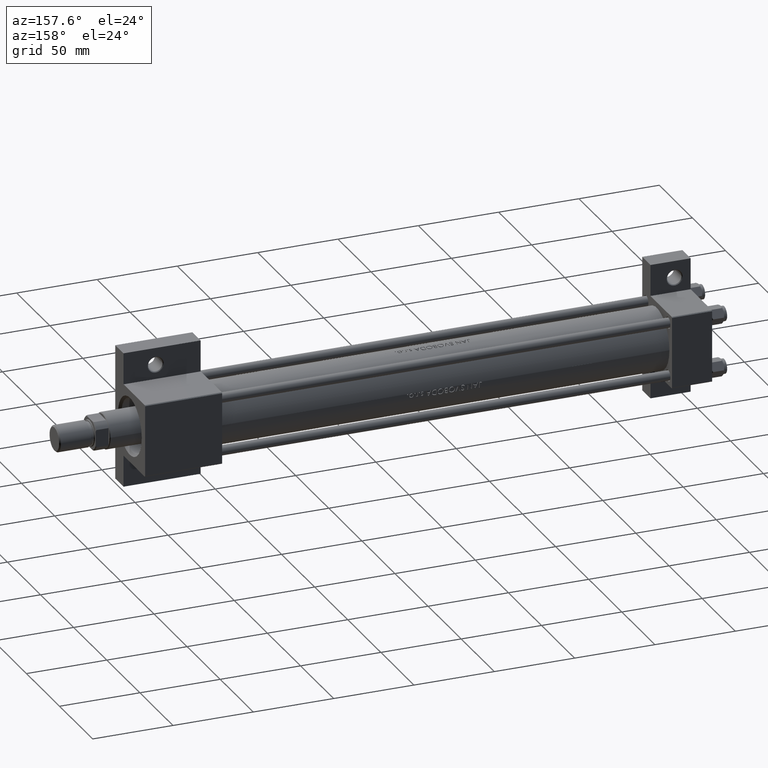
[diagram: clean part render]
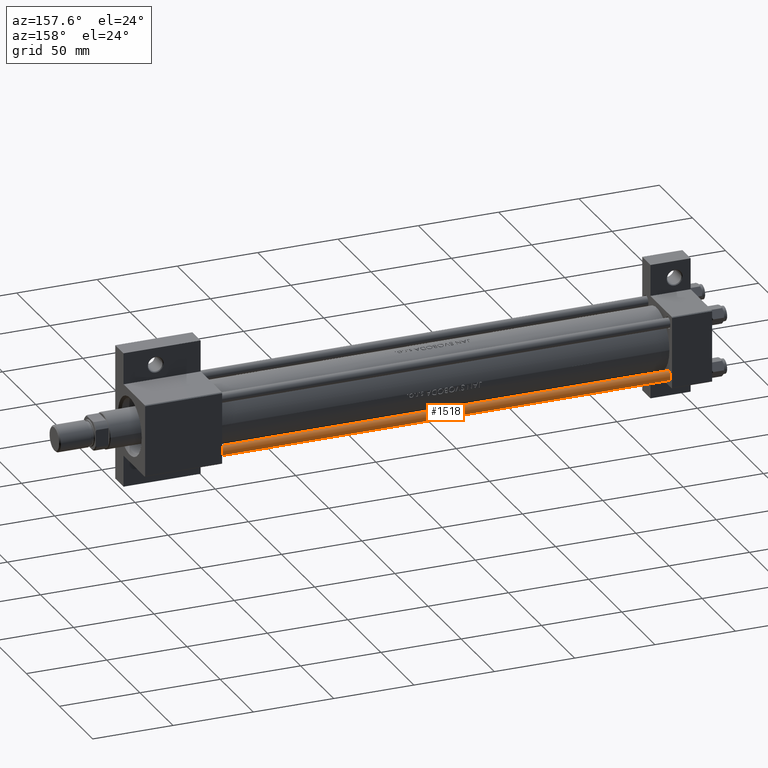
[diagram: same view with one face highlighted and labeled with its STEP entity id]
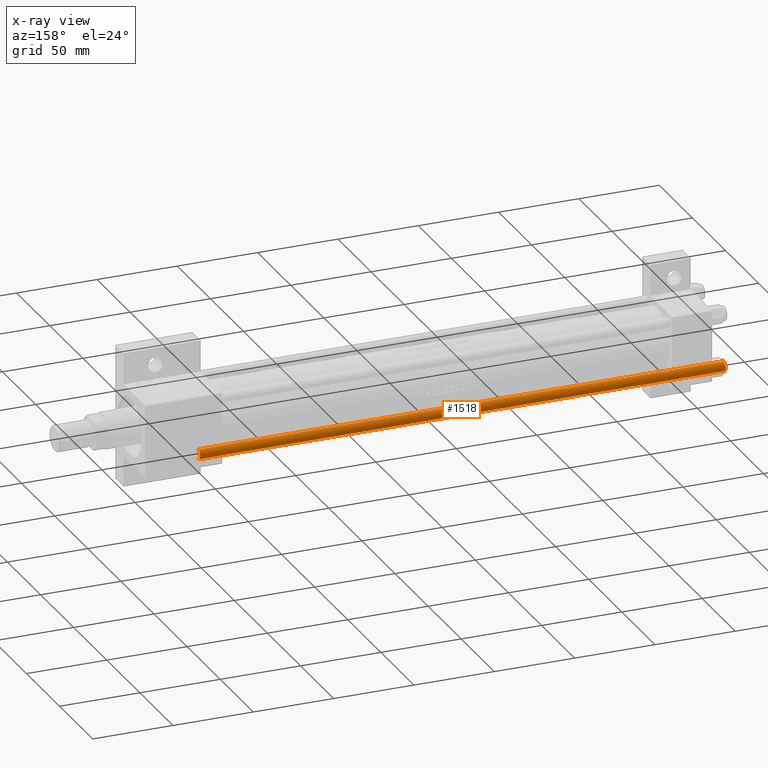
[diagram: x-ray of the same camera — body ghosted, the highlighted face saturated]
A machine part, auxiliary view. The second image highlights one B-rep face of the part: STEP entity #1518.
The next image is the same camera in x-ray: the body ghosted, the highlighted face saturated — about 0% of this face is hidden behind the body in this view.
In plain terms, the highlighted cylindrical surface (edge-blend (fillet) strip) has radius 3 mm, axis along (1, -0, -0).
Its self-contained STEP definition (entity closure, byte-faithful):
#762 = DIRECTION ( 'NONE',  ( 1.000000000000000000, 0.000000000000000000, 0.000000000000000000 ) ) ;
#904 = EDGE_CURVE ( 'NONE', #33443, #20782, #33482, .T. ) ;
#1518 = ADVANCED_FACE ( 'NONE', ( #13994 ), #3772, .T. ) ;
#2131 = CARTESIAN_POINT ( 'NONE',  ( -3.000000000000000444, 0.000000000000000000, 328.0000000000000000 ) ) ;
#2611 = LINE ( 'NONE', #2131, #13061 ) ;
#3772 = CYLINDRICAL_SURFACE ( 'NONE', #45916, 3.000000000000000444 ) ;
#4326 = CARTESIAN_POINT ( 'NONE',  ( 3.000000000000000444, 3.673940397442060361E-16, 328.0000000000000000 ) ) ;
#8411 = CIRCLE ( 'NONE', #45517, 3.000000000000000444 ) ;
#9964 = CARTESIAN_POINT ( 'NONE',  ( 3.000000000000000444, 3.673940397442060361E-16, 0.5000000000000559552 ) ) ;
#11070 = DIRECTION ( 'NONE',  ( -0.000000000000000000, -0.000000000000000000, -1.000000000000000000 ) ) ;
#12541 = AXIS2_PLACEMENT_3D ( 'NONE', #22164, #36992, #762 ) ;
#13061 = VECTOR ( 'NONE', #13793, 1000.000000000000000 ) ;
#13793 = DIRECTION ( 'NONE',  ( -0.000000000000000000, -0.000000000000000000, -1.000000000000000000 ) ) ;
#13994 = FACE_OUTER_BOUND ( 'NONE', #32786, .T. ) ;
#15261 = DIRECTION ( 'NONE',  ( -0.000000000000000000, -0.000000000000000000, -1.000000000000000000 ) ) ;
#17356 = VERTEX_POINT ( 'NONE', #9964 ) ;
#19862 = ORIENTED_EDGE ( 'NONE', *, *, #904, .T. ) ;
#20184 = EDGE_CURVE ( 'NONE', #33443, #37943, #2611, .T. ) ;
#20426 = EDGE_CURVE ( 'NONE', #17356, #37943, #8411, .T. ) ;
#20782 = VERTEX_POINT ( 'NONE', #29668 ) ;
#21126 = EDGE_CURVE ( 'NONE', #20782, #17356, #37610, .T. ) ;
#22164 = CARTESIAN_POINT ( 'NONE',  ( 0.000000000000000000, 0.000000000000000000, 327.5000000000000000 ) ) ;
#23636 = CARTESIAN_POINT ( 'NONE',  ( -3.000000000000000444, 0.000000000000000000, 327.5000000000000000 ) ) ;
#25869 = DIRECTION ( 'NONE',  ( -1.000000000000000000, 0.000000000000000000, 0.000000000000000000 ) ) ;
#26373 = DIRECTION ( 'NONE',  ( 1.000000000000000000, 0.000000000000000000, 0.000000000000000000 ) ) ;
#28429 = ORIENTED_EDGE ( 'NONE', *, *, #20184, .F. ) ;
#29567 = DIRECTION ( 'NONE',  ( -0.000000000000000000, -0.000000000000000000, 1.000000000000000000 ) ) ;
#29668 = CARTESIAN_POINT ( 'NONE',  ( 3.000000000000000444, 3.673940397442060361E-16, 327.5000000000000000 ) ) ;
#29836 = ORIENTED_EDGE ( 'NONE', *, *, #20426, .T. ) ;
#32779 = ORIENTED_EDGE ( 'NONE', *, *, #21126, .T. ) ;
#32786 = EDGE_LOOP ( 'NONE', ( #19862, #32779, #29836, #28429 ) ) ;
#33443 = VERTEX_POINT ( 'NONE', #23636 ) ;
#33482 = CIRCLE ( 'NONE', #12541, 3.000000000000000444 ) ;
#33756 = CARTESIAN_POINT ( 'NONE',  ( -3.000000000000000444, 0.000000000000000000, 0.5000000000000559552 ) ) ;
#36992 = DIRECTION ( 'NONE',  ( 0.000000000000000000, 0.000000000000000000, -1.000000000000000000 ) ) ;
#37610 = LINE ( 'NONE', #4326, #45559 ) ;
#37943 = VERTEX_POINT ( 'NONE', #33756 ) ;
#40959 = CARTESIAN_POINT ( 'NONE',  ( 0.000000000000000000, 0.000000000000000000, 0.5000000000000559552 ) ) ;
#44096 = CARTESIAN_POINT ( 'NONE',  ( 0.000000000000000000, 0.000000000000000000, 328.0000000000000000 ) ) ;
#45517 = AXIS2_PLACEMENT_3D ( 'NONE', #40959, #29567, #26373 ) ;
#45559 = VECTOR ( 'NONE', #15261, 1000.000000000000000 ) ;
#45916 = AXIS2_PLACEMENT_3D ( 'NONE', #44096, #11070, #25869 ) ;